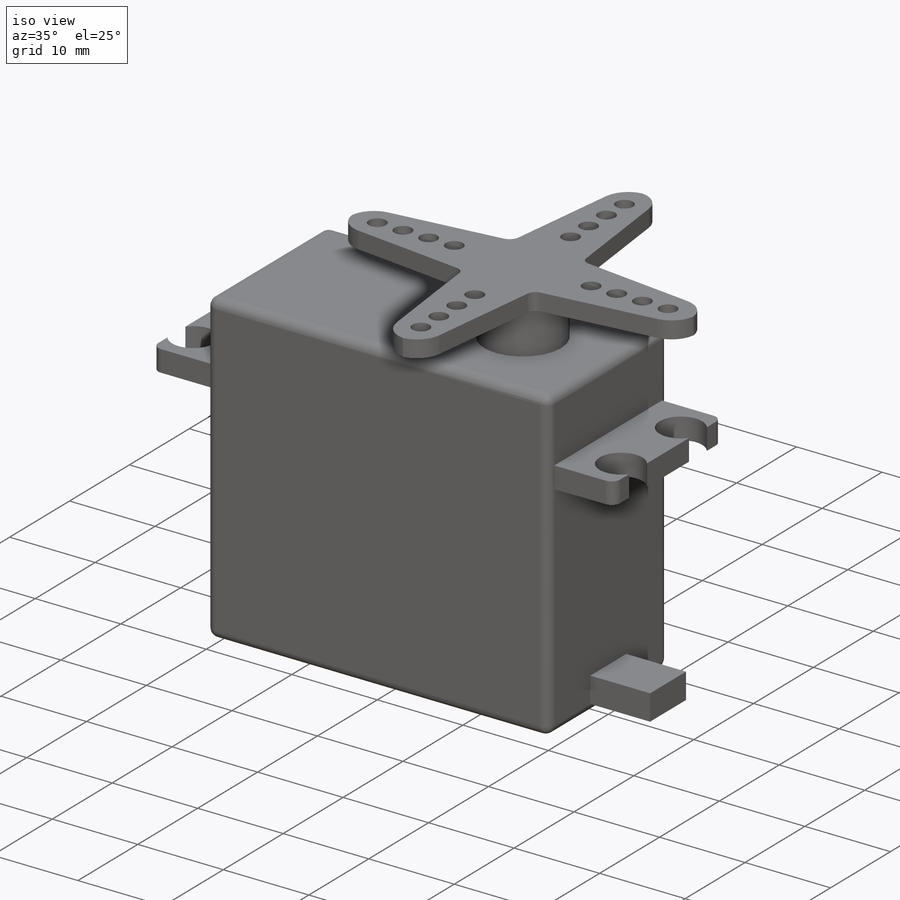
[diagram: iso view]
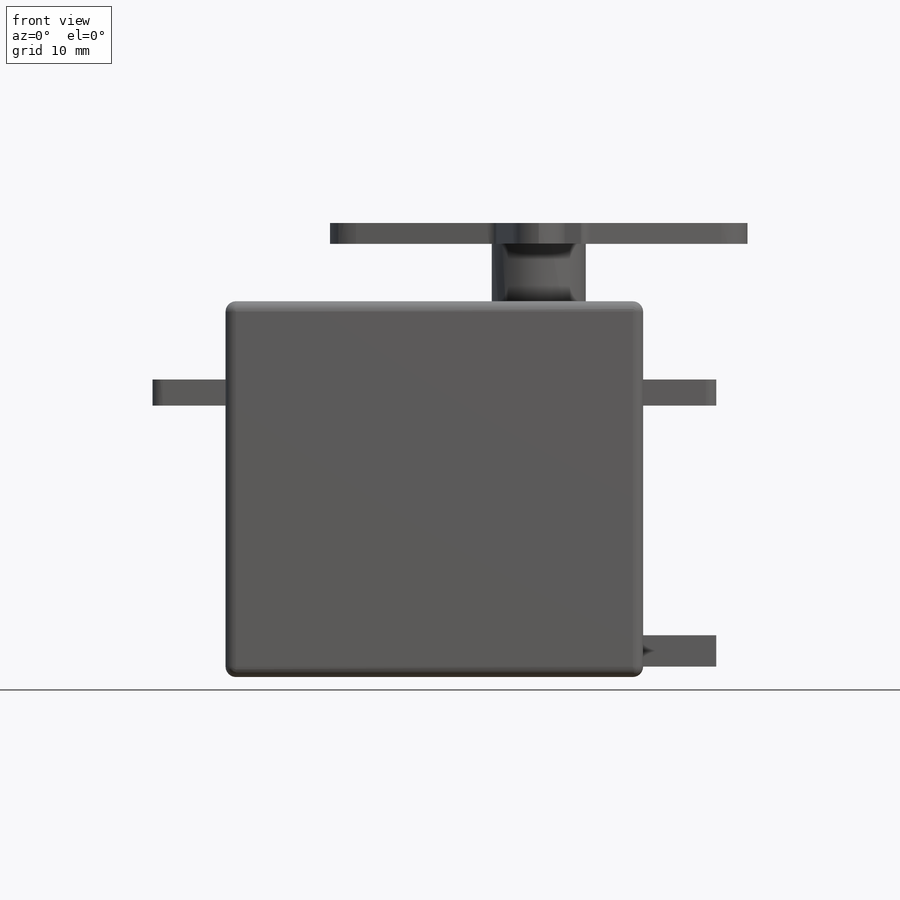
[diagram: front view]
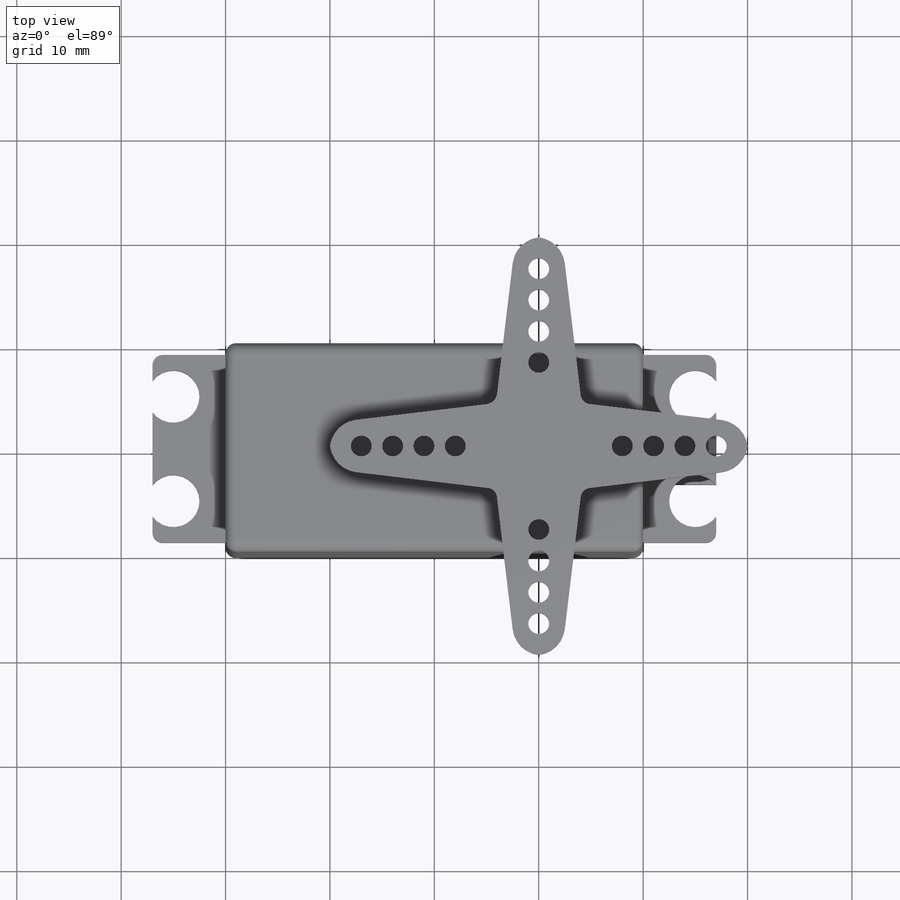
[diagram: top view]
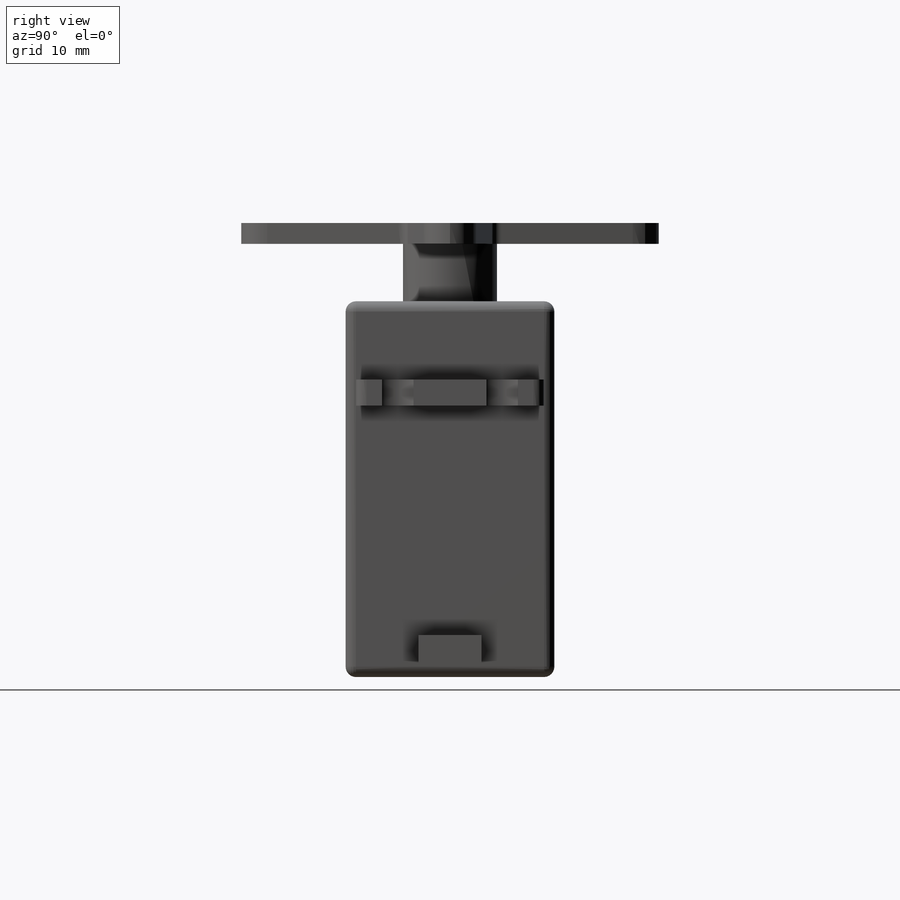
[diagram: right view]
SOLIDWORKS PART (.sldprt)
format: sldprt  version: not decoded by parser v0  size: 373,760 bytes
history: native  units: mm
features: sketch x9, extrude x6, fillet x3, cut_extrude x3, material x1 (+11 scaffold rows collapsed)
feature tree (33):
  scaffold x11  (default folders/planes/origin — collapsed)
  material  "Material <not specified>"
  sketch  "Sketch2"
  extrude  "Boss-Extrude1"  Depth=36mm
  fillet  "Fillet1"  Radius=1mm
  sketch  "Sketch4"  dims[D1=26.0mm D2=2.5mm]
  extrude  "Boss-Extrude2"  Depth=7mm
  sketch  "Sketch5"  dims[c1.D1=~1.951408mm c1.D3=~2.909221mm c2.D1=4.0mm c2.D2=5.0mm c2.D3=4.0mm]
  cut_extrude  "Cut-Extrude1"  [1 undecoded]
  fillet  "Fillet2"  Radius=1mm
  sketch  "Sketch7"  dims[D1=26.0mm D2=2.5mm]
  extrude  "Boss-Extrude3"  Depth=7mm
  fillet  "Fillet3"  Radius=1mm
  sketch  "Sketch8"  dims[c1.D1=~2.133628mm c1.D3=5.4418mm c2.D1=4.0mm c2.D2=5.0mm c2.D3=4.0mm]
  cut_extrude  "Cut-Extrude2"  [1 undecoded]
  sketch  "Sketch9"  dims[c1.D1=9.0mm c1.D2=10.0mm c2.D1=10.0mm]
  extrude  "Boss-Extrude4"  Depth=5.5mm
  sketch  "Sketch10"  dims[c1.D1=9.0mm c1.D8=~1.349763mm c2.D1=5.0mm c2.D2=~14.911218mm c3.D1=10.0mm c3.D2=40.0mm c3.D3=20.0mm c3.D4=40.0mm c3.D5=10.0mm c3.D6=5.0mm c3.D7=20.0mm]
  extrude  "Boss-Extrude5"  Depth=2mm
  sketch  "Sketch11"  dims[c1.D1=~0.964256mm c1.D2=~2.05708mm c1.D3=~1.846631mm c1.D4=~1.460928mm c1.D5=2.0mm c2.D1=3.0mm c2.D2=3.0mm c2.D3=3.0mm c2.D4=3.0mm c2.D5=4.0]
  cut_extrude  "Cut-Extrude3"  [1 undecoded]
  sketch  "Sketch12"  dims[D1=6.0mm D2=3.0mm]
  extrude  "Boss-Extrude6"  Depth=7mm
decode coverage: 17 of 21 modeling features carry decoded parameters
note: ~ marks probable driven/reference dimensions
note: 3 parameter values undecoded
summary: no parameter record found for 3 features
note: suppression state not decoded; provenance and decode notes live in map.json
